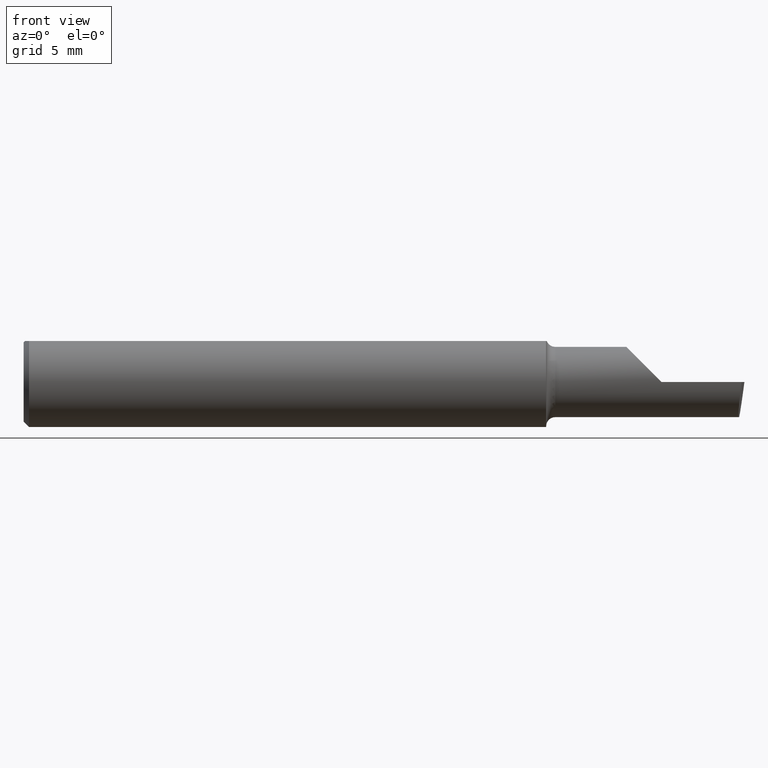
[diagram: clean part render]
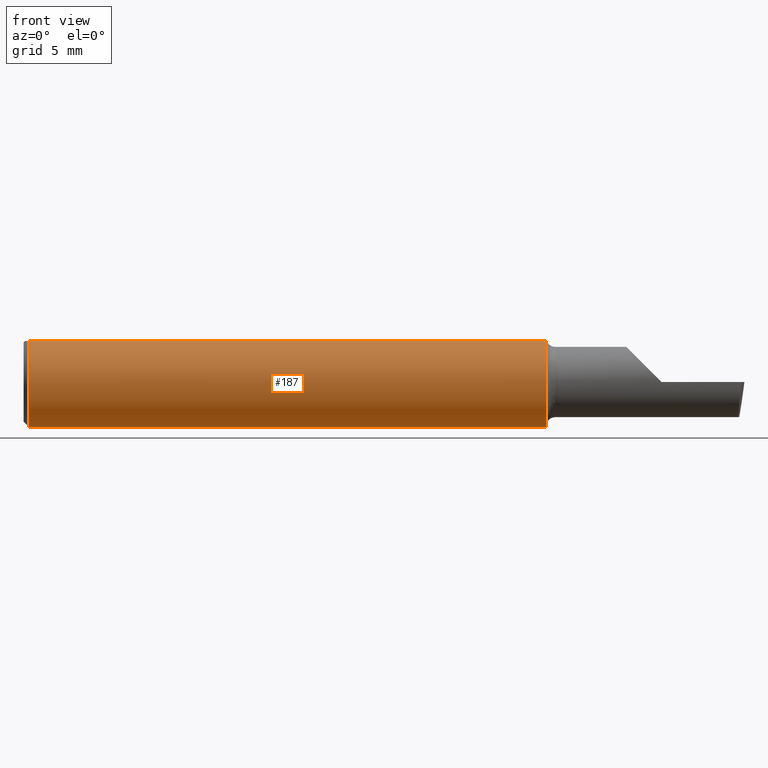
[diagram: same view with one face highlighted and labeled with its STEP entity id]
A machine part, front view. The second image highlights one B-rep face of the part: STEP entity #187.
In plain terms, the highlighted cylindrical surface (partial cylindrical patch) has radius 3.1712 mm, axis along (-1, -0, -0).
Its self-contained STEP definition (entity closure, byte-faithful):
#4 = CARTESIAN_POINT ( 'NONE',  ( 1.450000000000000178, 0.05124158467494929065, 0.1138500000000000068 ) ) ;
#10 = CARTESIAN_POINT ( 'NONE',  ( 0.01500000000000161621, 0.000000000000000000, -0.1248500000000000026 ) ) ;
#31 = CARTESIAN_POINT ( 'NONE',  ( 2.000000000000000444, 0.000000000000000000, 0.000000000000000000 ) ) ;
#34 = DIRECTION ( 'NONE',  ( 0.000000000000000000, 0.000000000000000000, -1.000000000000000000 ) ) ;
#38 = VERTEX_POINT ( 'NONE', #585 ) ;
#41 = DIRECTION ( 'NONE',  ( 1.000000000000000000, -0.000000000000000000, -0.000000000000000000 ) ) ;
#42 = ORIENTED_EDGE ( 'NONE', *, *, #47, .F. ) ;
#44 = CARTESIAN_POINT ( 'NONE',  ( 0.000000000000000000, 0.05124158467494929065, 0.1138500000000000068 ) ) ;
#47 = EDGE_CURVE ( 'NONE', #220, #237, #435, .T. ) ;
#85 = CARTESIAN_POINT ( 'NONE',  ( 0.01500000000000161621, 0.000000000000000000, 0.000000000000000000 ) ) ;
#98 = ORIENTED_EDGE ( 'NONE', *, *, #276, .T. ) ;
#118 = CIRCLE ( 'NONE', #611, 0.1248500000000000026 ) ;
#160 = DIRECTION ( 'NONE',  ( 0.000000000000000000, 0.000000000000000000, -1.000000000000000000 ) ) ;
#184 = DIRECTION ( 'NONE',  ( 1.000000000000000000, -0.000000000000000000, -0.000000000000000000 ) ) ;
#185 = CIRCLE ( 'NONE', #214, 0.1248500000000000026 ) ;
#187 = ADVANCED_FACE ( 'NONE', ( #366 ), #325, .T. ) ;
#214 = AXIS2_PLACEMENT_3D ( 'NONE', #222, #274, #610 ) ;
#220 = VERTEX_POINT ( 'NONE', #601 ) ;
#222 = CARTESIAN_POINT ( 'NONE',  ( 1.450000000000000178, 0.000000000000000000, 0.000000000000000000 ) ) ;
#232 = EDGE_CURVE ( 'NONE', #237, #378, #185, .T. ) ;
#237 = VERTEX_POINT ( 'NONE', #573 ) ;
#263 = ORIENTED_EDGE ( 'NONE', *, *, #562, .T. ) ;
#268 = VECTOR ( 'NONE', #394, 39.37007874015748143 ) ;
#274 = DIRECTION ( 'NONE',  ( 1.000000000000000000, 0.000000000000000000, 0.000000000000000000 ) ) ;
#276 = EDGE_CURVE ( 'NONE', #38, #378, #519, .T. ) ;
#302 = EDGE_CURVE ( 'NONE', #545, #38, #118, .T. ) ;
#305 = DIRECTION ( 'NONE',  ( 1.000000000000000000, -0.000000000000000000, -0.000000000000000000 ) ) ;
#308 = DIRECTION ( 'NONE',  ( 0.000000000000000000, 0.000000000000000000, 1.000000000000000000 ) ) ;
#310 = AXIS2_PLACEMENT_3D ( 'NONE', #314, #305, #160 ) ;
#314 = CARTESIAN_POINT ( 'NONE',  ( 0.01500000000000161621, 0.000000000000000000, 0.000000000000000000 ) ) ;
#325 = CYLINDRICAL_SURFACE ( 'NONE', #389, 0.1248500000000000026 ) ;
#347 = EDGE_LOOP ( 'NONE', ( #473, #42, #263, #387, #98 ) ) ;
#366 = FACE_OUTER_BOUND ( 'NONE', #347, .T. ) ;
#378 = VERTEX_POINT ( 'NONE', #4 ) ;
#387 = ORIENTED_EDGE ( 'NONE', *, *, #302, .T. ) ;
#389 = AXIS2_PLACEMENT_3D ( 'NONE', #31, #555, #308 ) ;
#394 = DIRECTION ( 'NONE',  ( 1.000000000000000000, -0.000000000000000000, -0.000000000000000000 ) ) ;
#435 = LINE ( 'NONE', #587, #268 ) ;
#449 = CIRCLE ( 'NONE', #310, 0.1248500000000000026 ) ;
#473 = ORIENTED_EDGE ( 'NONE', *, *, #232, .F. ) ;
#519 = LINE ( 'NONE', #44, #591 ) ;
#545 = VERTEX_POINT ( 'NONE', #10 ) ;
#555 = DIRECTION ( 'NONE',  ( -1.000000000000000000, -0.000000000000000000, -0.000000000000000000 ) ) ;
#562 = EDGE_CURVE ( 'NONE', #220, #545, #449, .T. ) ;
#573 = CARTESIAN_POINT ( 'NONE',  ( 1.450000000000000178, -0.05124158467494929065, 0.1138500000000000068 ) ) ;
#585 = CARTESIAN_POINT ( 'NONE',  ( 0.01500000000000161621, 0.05124158467494929065, 0.1138500000000000068 ) ) ;
#587 = CARTESIAN_POINT ( 'NONE',  ( 0.000000000000000000, -0.05124158467494929065, 0.1138500000000000068 ) ) ;
#591 = VECTOR ( 'NONE', #184, 39.37007874015748143 ) ;
#601 = CARTESIAN_POINT ( 'NONE',  ( 0.01500000000000161621, -0.05124158467494929065, 0.1138500000000000068 ) ) ;
#610 = DIRECTION ( 'NONE',  ( 0.000000000000000000, 0.000000000000000000, -1.000000000000000000 ) ) ;
#611 = AXIS2_PLACEMENT_3D ( 'NONE', #85, #41, #34 ) ;